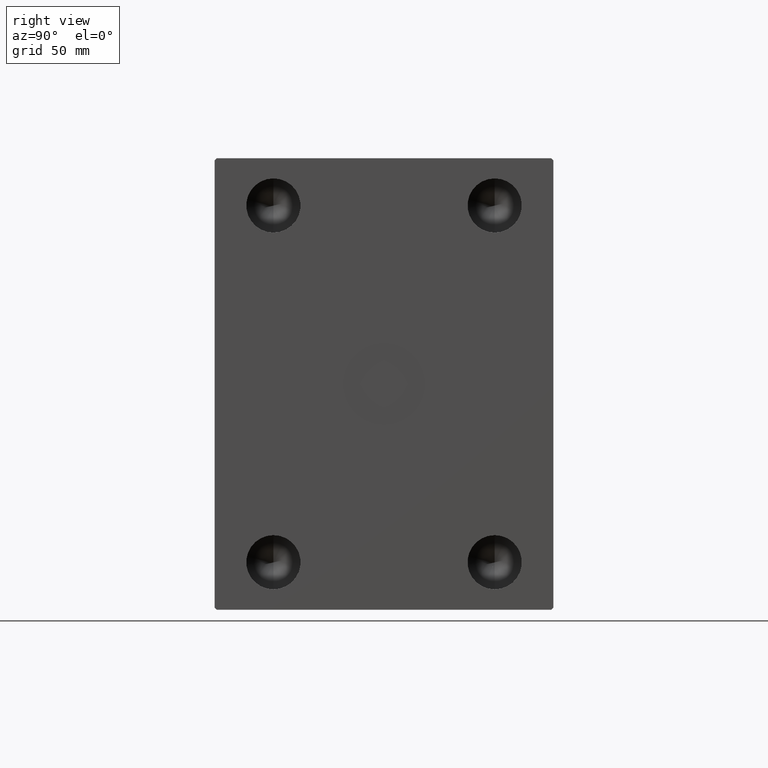
[diagram: clean part render]
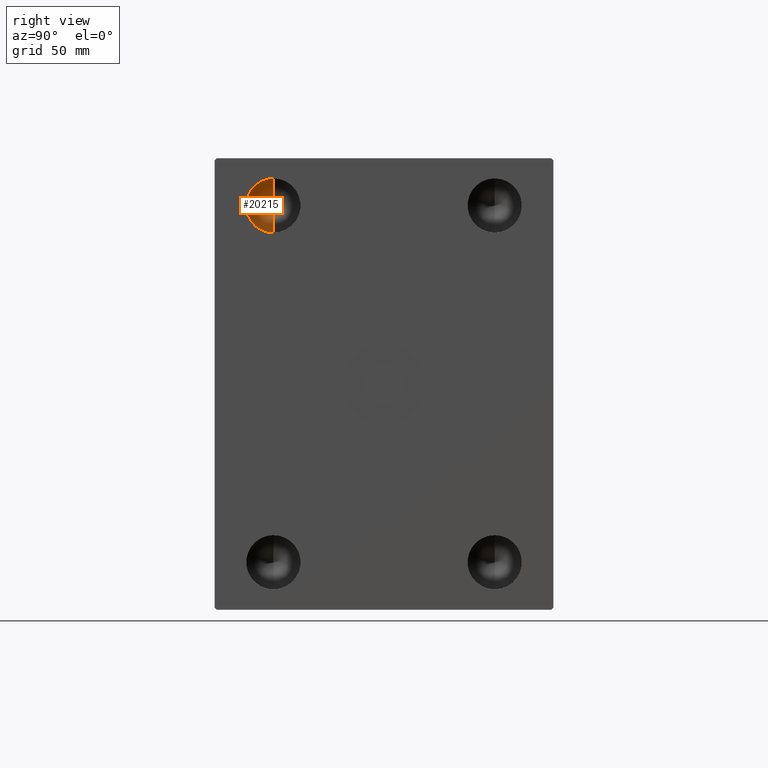
[diagram: same view with one face highlighted and labeled with its STEP entity id]
A machine part, right view. The second image highlights one B-rep face of the part: STEP entity #20215.
In plain terms, the highlighted conical surface has half-angle 59 deg.
Its self-contained STEP definition (entity closure, byte-faithful):
#1896 = ORIENTED_EDGE ( 'NONE', *, *, #19663, .T. ) ;
#5176 = CARTESIAN_POINT ( 'NONE',  ( 165.3300000000000125, -49.00000000000000000, 67.00000000000001421 ) ) ;
#5714 = DIRECTION ( 'NONE',  ( 1.000000000000000000, -0.000000000000000000, -0.000000000000000000 ) ) ;
#9292 = FACE_OUTER_BOUND ( 'NONE', #30180, .T. ) ;
#10418 = CIRCLE ( 'NONE', #39105, 11.99999999999999645 ) ;
#12590 = LINE ( 'NONE', #33033, #27167 ) ;
#12883 = ORIENTED_EDGE ( 'NONE', *, *, #32359, .F. ) ;
#13251 = VERTEX_POINT ( 'NONE', #5176 ) ;
#13624 = DIRECTION ( 'NONE',  ( 1.000000000000000000, -0.000000000000000000, -0.000000000000000000 ) ) ;
#17231 = VERTEX_POINT ( 'NONE', #41577 ) ;
#19663 = EDGE_CURVE ( 'NONE', #17231, #13251, #10418, .T. ) ;
#20130 = CARTESIAN_POINT ( 'NONE',  ( 165.3300000000000125, -49.00000000000000000, 79.00000000000001421 ) ) ;
#20215 = ADVANCED_FACE ( 'NONE', ( #9292 ), #26802, .F. ) ;
#21223 = CARTESIAN_POINT ( 'NONE',  ( 158.1196725716692697, -49.00000000000000711, 79.00000000000001421 ) ) ;
#23069 = DIRECTION ( 'NONE',  ( 0.000000000000000000, 0.000000000000000000, -1.000000000000000000 ) ) ;
#24683 = AXIS2_PLACEMENT_3D ( 'NONE', #33086, #5714, #39817 ) ;
#26785 = CARTESIAN_POINT ( 'NONE',  ( 165.3300000000000125, -49.00000000000000000, 91.00000000000001421 ) ) ;
#26802 = CONICAL_SURFACE ( 'NONE', #24683, 11.99999999999999645, 1.029744258676652535 ) ;
#27167 = VECTOR ( 'NONE', #32804, 1000.000000000000000 ) ;
#27620 = VERTEX_POINT ( 'NONE', #21223 ) ;
#30179 = LINE ( 'NONE', #26785, #38319 ) ;
#30180 = EDGE_LOOP ( 'NONE', ( #12883, #33018, #1896 ) ) ;
#32359 = EDGE_CURVE ( 'NONE', #27620, #13251, #12590, .T. ) ;
#32804 = DIRECTION ( 'NONE',  ( 0.5150380749100558209, 0.000000000000000000, -0.8571673007021113344 ) ) ;
#33018 = ORIENTED_EDGE ( 'NONE', *, *, #37138, .T. ) ;
#33033 = CARTESIAN_POINT ( 'NONE',  ( 165.3300000000000125, -49.00000000000000000, 67.00000000000001421 ) ) ;
#33086 = CARTESIAN_POINT ( 'NONE',  ( 165.3300000000000125, -49.00000000000000000, 79.00000000000001421 ) ) ;
#33976 = DIRECTION ( 'NONE',  ( 0.5150380749100558209, 1.049727191138617463E-16, 0.8571673007021113344 ) ) ;
#37138 = EDGE_CURVE ( 'NONE', #27620, #17231, #30179, .T. ) ;
#38319 = VECTOR ( 'NONE', #33976, 1000.000000000000000 ) ;
#39105 = AXIS2_PLACEMENT_3D ( 'NONE', #20130, #13624, #23069 ) ;
#39817 = DIRECTION ( 'NONE',  ( 0.000000000000000000, 0.000000000000000000, -1.000000000000000000 ) ) ;
#41577 = CARTESIAN_POINT ( 'NONE',  ( 165.3300000000000125, -49.00000000000000000, 91.00000000000001421 ) ) ;